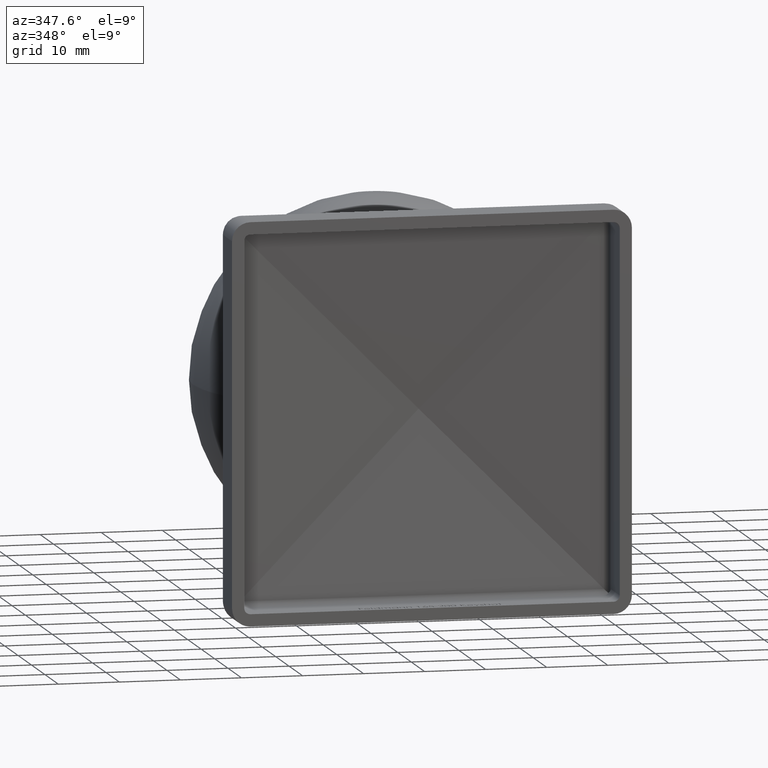
[diagram: clean part render]
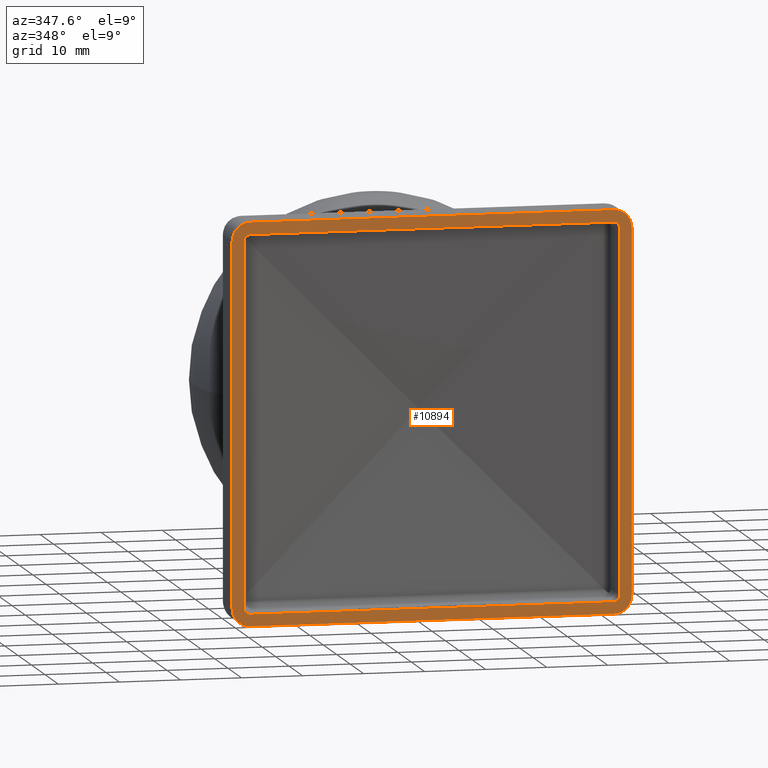
[diagram: same view with one face highlighted and labeled with its STEP entity id]
A machine part, auxiliary view. The second image highlights one B-rep face of the part: STEP entity #10894.
In plain terms, the highlighted planar face has unit normal (0, 1, 0).
Its self-contained STEP definition (entity closure, byte-faithful):
#270 = VERTEX_POINT ( 'NONE', #12974 ) ;
#301 = AXIS2_PLACEMENT_3D ( 'NONE', #4593, #12509, #15079 ) ;
#368 = EDGE_LOOP ( 'NONE', ( #6599, #8752, #5563, #1924, #14241, #16494, #9416, #7278 ) ) ;
#628 = CARTESIAN_POINT ( 'NONE',  ( -29.75000000000004300, 0.0000000000000000000, 29.75000000000000400 ) ) ;
#697 = CARTESIAN_POINT ( 'NONE',  ( -30.75000000000004600, 0.0000000000000000000, -29.75000000000000400 ) ) ;
#713 = CARTESIAN_POINT ( 'NONE',  ( -29.75000000000004300, 0.0000000000000000000, 29.75000000000000400 ) ) ;
#817 = CARTESIAN_POINT ( 'NONE',  ( -29.75000000000004300, 0.0000000000000000000, -32.75000000000000000 ) ) ;
#971 = VERTEX_POINT ( 'NONE', #11236 ) ;
#974 = VECTOR ( 'NONE', #6580, 1000.000000000000000 ) ;
#1186 = VECTOR ( 'NONE', #3041, 1000.000000000000000 ) ;
#1223 = AXIS2_PLACEMENT_3D ( 'NONE', #5555, #8214, #3013 ) ;
#1245 = DIRECTION ( 'NONE',  ( -0.0000000000000000000, -1.000000000000000000, -0.0000000000000000000 ) ) ;
#1289 = AXIS2_PLACEMENT_3D ( 'NONE', #628, #12473, #1915 ) ;
#1595 = LINE ( 'NONE', #4202, #1186 ) ;
#1915 = DIRECTION ( 'NONE',  ( 0.0000000000000000000, 0.0000000000000000000, 1.000000000000000000 ) ) ;
#1924 = ORIENTED_EDGE ( 'NONE', *, *, #13159, .T. ) ;
#1984 = LINE ( 'NONE', #10337, #16749 ) ;
#2011 = DIRECTION ( 'NONE',  ( -0.0000000000000000000, -1.000000000000000000, -0.0000000000000000000 ) ) ;
#2024 = LINE ( 'NONE', #5336, #12900 ) ;
#2081 = CARTESIAN_POINT ( 'NONE',  ( 29.74999999999997200, 0.0000000000000000000, 30.75000000000000000 ) ) ;
#2365 = FACE_BOUND ( 'NONE', #9291, .T. ) ;
#2385 = AXIS2_PLACEMENT_3D ( 'NONE', #13627, #5675, #9867 ) ;
#2505 = AXIS2_PLACEMENT_3D ( 'NONE', #14059, #7621, #14120 ) ;
#2556 = ORIENTED_EDGE ( 'NONE', *, *, #10669, .T. ) ;
#2660 = DIRECTION ( 'NONE',  ( 0.0000000000000000000, 0.0000000000000000000, 1.000000000000000000 ) ) ;
#2888 = DIRECTION ( 'NONE',  ( -2.118746230200680300E-016, -0.0000000000000000000, -1.000000000000000000 ) ) ;
#2937 = CARTESIAN_POINT ( 'NONE',  ( 32.74999999999997200, 0.0000000000000000000, 29.75000000000000000 ) ) ;
#3013 = DIRECTION ( 'NONE',  ( 0.0000000000000000000, 0.0000000000000000000, 1.000000000000000000 ) ) ;
#3041 = DIRECTION ( 'NONE',  ( 0.0000000000000000000, 0.0000000000000000000, 1.000000000000000000 ) ) ;
#3150 = CIRCLE ( 'NONE', #7668, 1.000000000000000900 ) ;
#3450 = LINE ( 'NONE', #9167, #974 ) ;
#3579 = EDGE_CURVE ( 'NONE', #11639, #11269, #3150, .T. ) ;
#3817 = CIRCLE ( 'NONE', #3937, 2.999999999999999100 ) ;
#3937 = AXIS2_PLACEMENT_3D ( 'NONE', #10451, #15712, #9300 ) ;
#4202 = CARTESIAN_POINT ( 'NONE',  ( -32.75000000000004300, 0.0000000000000000000, -32.75000000000000000 ) ) ;
#4232 = CARTESIAN_POINT ( 'NONE',  ( 30.74999999999995700, 0.0000000000000000000, -29.75000000000000400 ) ) ;
#4340 = EDGE_CURVE ( 'NONE', #14072, #270, #15943, .T. ) ;
#4542 = CARTESIAN_POINT ( 'NONE',  ( -32.75000000000004300, 0.0000000000000000000, -30.75000000000000000 ) ) ;
#4593 = CARTESIAN_POINT ( 'NONE',  ( 0.0000000000000000000, 0.0000000000000000000, 0.0000000000000000000 ) ) ;
#4619 = EDGE_CURVE ( 'NONE', #11639, #10602, #5757, .T. ) ;
#4777 = CARTESIAN_POINT ( 'NONE',  ( 29.74999999999995700, 0.0000000000000000000, -32.75000000000000000 ) ) ;
#4795 = EDGE_CURVE ( 'NONE', #5393, #9543, #3450, .T. ) ;
#5191 = VECTOR ( 'NONE', #13380, 1000.000000000000000 ) ;
#5250 = EDGE_CURVE ( 'NONE', #15876, #16164, #8821, .T. ) ;
#5336 = CARTESIAN_POINT ( 'NONE',  ( -30.75000000000004300, 0.0000000000000000000, -32.75000000000000000 ) ) ;
#5393 = VERTEX_POINT ( 'NONE', #4777 ) ;
#5396 = DIRECTION ( 'NONE',  ( 0.0000000000000000000, 0.0000000000000000000, 1.000000000000000000 ) ) ;
#5450 = DIRECTION ( 'NONE',  ( 0.0000000000000000000, 0.0000000000000000000, 1.000000000000000000 ) ) ;
#5481 = DIRECTION ( 'NONE',  ( -1.000000000000000000, 0.0000000000000000000, 0.0000000000000000000 ) ) ;
#5555 = CARTESIAN_POINT ( 'NONE',  ( -29.75000000000004300, 0.0000000000000000000, -29.75000000000000400 ) ) ;
#5563 = ORIENTED_EDGE ( 'NONE', *, *, #16795, .F. ) ;
#5586 = AXIS2_PLACEMENT_3D ( 'NONE', #7880, #1245, #2660 ) ;
#5675 = DIRECTION ( 'NONE',  ( -0.0000000000000000000, -1.000000000000000000, -0.0000000000000000000 ) ) ;
#5740 = PLANE ( 'NONE',  #301 ) ;
#5757 = LINE ( 'NONE', #16728, #14942 ) ;
#5764 = LINE ( 'NONE', #10772, #6168 ) ;
#6054 = ORIENTED_EDGE ( 'NONE', *, *, #7763, .F. ) ;
#6168 = VECTOR ( 'NONE', #2888, 1000.000000000000000 ) ;
#6293 = DIRECTION ( 'NONE',  ( 1.000000000000000000, -0.0000000000000000000, 0.0000000000000000000 ) ) ;
#6364 = CARTESIAN_POINT ( 'NONE',  ( -29.75000000000004300, 0.0000000000000000000, 30.75000000000000400 ) ) ;
#6580 = DIRECTION ( 'NONE',  ( -1.000000000000000000, -0.0000000000000000000, -0.0000000000000000000 ) ) ;
#6599 = ORIENTED_EDGE ( 'NONE', *, *, #4795, .F. ) ;
#6637 = CARTESIAN_POINT ( 'NONE',  ( -32.75000000000004300, 0.0000000000000000000, 32.75000000000000000 ) ) ;
#7014 = ORIENTED_EDGE ( 'NONE', *, *, #8911, .T. ) ;
#7115 = CARTESIAN_POINT ( 'NONE',  ( 32.74999999999995700, 0.0000000000000000000, -29.75000000000000400 ) ) ;
#7247 = VERTEX_POINT ( 'NONE', #2937 ) ;
#7278 = ORIENTED_EDGE ( 'NONE', *, *, #16819, .T. ) ;
#7347 = DIRECTION ( 'NONE',  ( 0.0000000000000000000, 0.0000000000000000000, 1.000000000000000000 ) ) ;
#7404 = ORIENTED_EDGE ( 'NONE', *, *, #4340, .F. ) ;
#7456 = VERTEX_POINT ( 'NONE', #16926 ) ;
#7621 = DIRECTION ( 'NONE',  ( -0.0000000000000000000, -1.000000000000000000, -0.0000000000000000000 ) ) ;
#7668 = AXIS2_PLACEMENT_3D ( 'NONE', #713, #2011, #7347 ) ;
#7763 = EDGE_CURVE ( 'NONE', #7456, #10602, #11467, .T. ) ;
#7880 = CARTESIAN_POINT ( 'NONE',  ( 29.74999999999997500, 0.0000000000000000000, 29.75000000000000000 ) ) ;
#7977 = VECTOR ( 'NONE', #5481, 1000.000000000000000 ) ;
#8214 = DIRECTION ( 'NONE',  ( -0.0000000000000000000, -1.000000000000000000, -0.0000000000000000000 ) ) ;
#8269 = AXIS2_PLACEMENT_3D ( 'NONE', #11984, #13290, #5450 ) ;
#8599 = EDGE_CURVE ( 'NONE', #14072, #11269, #2024, .T. ) ;
#8752 = ORIENTED_EDGE ( 'NONE', *, *, #10777, .T. ) ;
#8781 = EDGE_CURVE ( 'NONE', #11315, #16164, #1595, .T. ) ;
#8821 = CIRCLE ( 'NONE', #1289, 2.999999999999999100 ) ;
#8911 = EDGE_CURVE ( 'NONE', #12951, #270, #16569, .T. ) ;
#9111 = LINE ( 'NONE', #6637, #5191 ) ;
#9115 = EDGE_CURVE ( 'NONE', #12951, #16832, #16967, .T. ) ;
#9167 = CARTESIAN_POINT ( 'NONE',  ( -32.75000000000004300, 0.0000000000000000000, -32.75000000000000000 ) ) ;
#9291 = EDGE_LOOP ( 'NONE', ( #14045, #7014, #7404, #13763, #13478, #15543, #6054, #2556 ) ) ;
#9300 = DIRECTION ( 'NONE',  ( 0.0000000000000000000, 0.0000000000000000000, 1.000000000000000000 ) ) ;
#9416 = ORIENTED_EDGE ( 'NONE', *, *, #8781, .F. ) ;
#9430 = VERTEX_POINT ( 'NONE', #7115 ) ;
#9543 = VERTEX_POINT ( 'NONE', #817 ) ;
#9867 = DIRECTION ( 'NONE',  ( 0.0000000000000000000, 0.0000000000000000000, 1.000000000000000000 ) ) ;
#10337 = CARTESIAN_POINT ( 'NONE',  ( 30.74999999999995700, 0.0000000000000000000, -32.75000000000000000 ) ) ;
#10451 = CARTESIAN_POINT ( 'NONE',  ( 29.74999999999995700, 0.0000000000000000000, -29.75000000000000400 ) ) ;
#10602 = VERTEX_POINT ( 'NONE', #2081 ) ;
#10669 = EDGE_CURVE ( 'NONE', #7456, #16832, #1984, .T. ) ;
#10772 = CARTESIAN_POINT ( 'NONE',  ( 32.74999999999995700, 0.0000000000000000000, -32.75000000000000000 ) ) ;
#10777 = EDGE_CURVE ( 'NONE', #5393, #9430, #3817, .T. ) ;
#10803 = CARTESIAN_POINT ( 'NONE',  ( 29.74999999999995700, 0.0000000000000000000, -30.75000000000000400 ) ) ;
#10894 = ADVANCED_FACE ( 'NONE', ( #12007, #2365 ), #5740, .F. ) ;
#11236 = CARTESIAN_POINT ( 'NONE',  ( 29.74999999999997200, 0.0000000000000000000, 32.75000000000000000 ) ) ;
#11238 = CARTESIAN_POINT ( 'NONE',  ( -32.75000000000004300, 0.0000000000000000000, -29.75000000000000400 ) ) ;
#11269 = VERTEX_POINT ( 'NONE', #13638 ) ;
#11315 = VERTEX_POINT ( 'NONE', #11238 ) ;
#11467 = CIRCLE ( 'NONE', #5586, 1.000000000000000900 ) ;
#11639 = VERTEX_POINT ( 'NONE', #6364 ) ;
#11984 = CARTESIAN_POINT ( 'NONE',  ( 29.74999999999997500, 0.0000000000000000000, 29.75000000000000000 ) ) ;
#12007 = FACE_OUTER_BOUND ( 'NONE', #368, .T. ) ;
#12334 = CIRCLE ( 'NONE', #1223, 2.999999999999999100 ) ;
#12398 = CIRCLE ( 'NONE', #8269, 3.000000000000002700 ) ;
#12473 = DIRECTION ( 'NONE',  ( -0.0000000000000000000, -1.000000000000000000, -0.0000000000000000000 ) ) ;
#12509 = DIRECTION ( 'NONE',  ( 0.0000000000000000000, 1.000000000000000000, 0.0000000000000000000 ) ) ;
#12900 = VECTOR ( 'NONE', #5396, 1000.000000000000000 ) ;
#12951 = VERTEX_POINT ( 'NONE', #10803 ) ;
#12974 = CARTESIAN_POINT ( 'NONE',  ( -29.75000000000004300, 0.0000000000000000000, -30.75000000000000000 ) ) ;
#13159 = EDGE_CURVE ( 'NONE', #7247, #971, #12398, .T. ) ;
#13290 = DIRECTION ( 'NONE',  ( -0.0000000000000000000, -1.000000000000000000, -0.0000000000000000000 ) ) ;
#13380 = DIRECTION ( 'NONE',  ( 1.000000000000000000, 0.0000000000000000000, 0.0000000000000000000 ) ) ;
#13478 = ORIENTED_EDGE ( 'NONE', *, *, #3579, .F. ) ;
#13597 = CARTESIAN_POINT ( 'NONE',  ( -29.75000000000004300, 0.0000000000000000000, 32.75000000000000000 ) ) ;
#13627 = CARTESIAN_POINT ( 'NONE',  ( -29.75000000000004300, 0.0000000000000000000, -29.75000000000000400 ) ) ;
#13638 = CARTESIAN_POINT ( 'NONE',  ( -30.75000000000004300, 0.0000000000000000000, 29.75000000000000000 ) ) ;
#13763 = ORIENTED_EDGE ( 'NONE', *, *, #8599, .T. ) ;
#13869 = EDGE_CURVE ( 'NONE', #15876, #971, #9111, .T. ) ;
#14045 = ORIENTED_EDGE ( 'NONE', *, *, #9115, .F. ) ;
#14059 = CARTESIAN_POINT ( 'NONE',  ( 29.74999999999995700, 0.0000000000000000000, -29.75000000000000400 ) ) ;
#14072 = VERTEX_POINT ( 'NONE', #697 ) ;
#14120 = DIRECTION ( 'NONE',  ( 0.0000000000000000000, 0.0000000000000000000, 1.000000000000000000 ) ) ;
#14241 = ORIENTED_EDGE ( 'NONE', *, *, #13869, .F. ) ;
#14942 = VECTOR ( 'NONE', #6293, 1000.000000000000000 ) ;
#15079 = DIRECTION ( 'NONE',  ( 0.0000000000000000000, -0.0000000000000000000, 1.000000000000000000 ) ) ;
#15543 = ORIENTED_EDGE ( 'NONE', *, *, #4619, .T. ) ;
#15601 = DIRECTION ( 'NONE',  ( -2.118746230200680300E-016, 0.0000000000000000000, -1.000000000000000000 ) ) ;
#15712 = DIRECTION ( 'NONE',  ( -0.0000000000000000000, -1.000000000000000000, -0.0000000000000000000 ) ) ;
#15876 = VERTEX_POINT ( 'NONE', #13597 ) ;
#15943 = CIRCLE ( 'NONE', #2385, 1.000000000000000900 ) ;
#15947 = CARTESIAN_POINT ( 'NONE',  ( -32.75000000000004300, 0.0000000000000000000, 29.75000000000000000 ) ) ;
#16164 = VERTEX_POINT ( 'NONE', #15947 ) ;
#16494 = ORIENTED_EDGE ( 'NONE', *, *, #5250, .T. ) ;
#16569 = LINE ( 'NONE', #4542, #7977 ) ;
#16728 = CARTESIAN_POINT ( 'NONE',  ( -32.75000000000004300, 0.0000000000000000000, 30.75000000000000000 ) ) ;
#16749 = VECTOR ( 'NONE', #15601, 1000.000000000000000 ) ;
#16795 = EDGE_CURVE ( 'NONE', #7247, #9430, #5764, .T. ) ;
#16819 = EDGE_CURVE ( 'NONE', #11315, #9543, #12334, .T. ) ;
#16832 = VERTEX_POINT ( 'NONE', #4232 ) ;
#16926 = CARTESIAN_POINT ( 'NONE',  ( 30.74999999999997500, 0.0000000000000000000, 29.75000000000000000 ) ) ;
#16967 = CIRCLE ( 'NONE', #2505, 1.000000000000000900 ) ;